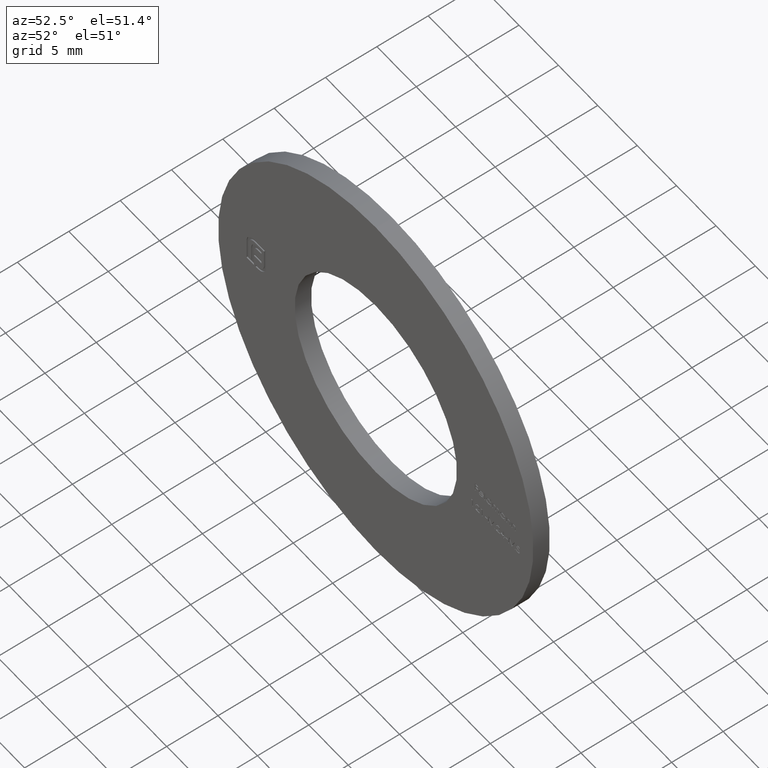
[diagram: clean part render]
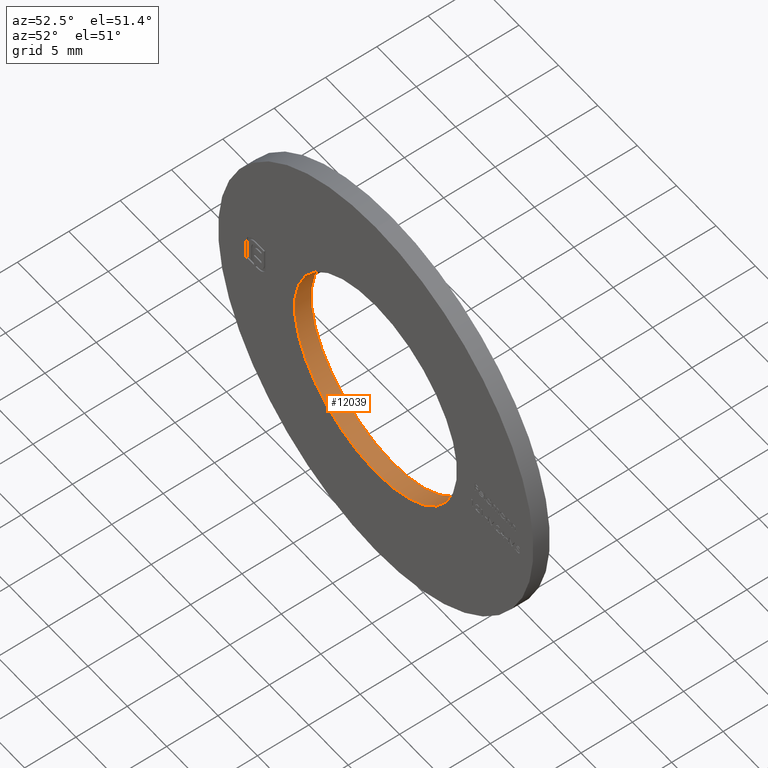
[diagram: same view with one face highlighted and labeled with its STEP entity id]
A machine part, auxiliary view. The second image highlights one B-rep face of the part: STEP entity #12039.
In plain terms, the highlighted cylindrical surface (bore or boss wall) has radius 10.3 mm, axis along (-0, -1, -0).
Its self-contained STEP definition (entity closure, byte-faithful):
#133 = FACE_OUTER_BOUND ( 'NONE', #4636, .T. ) ;
#1039 = DIRECTION ( 'NONE',  ( -0.000000000000000000, -1.000000000000000000, -0.000000000000000000 ) ) ;
#1114 = CIRCLE ( 'NONE', #8252, 10.30000000000000249 ) ;
#1130 = CARTESIAN_POINT ( 'NONE',  ( 0.000000000000000000, 0.8000000000000000444, 0.000000000000000000 ) ) ;
#1189 = FACE_OUTER_BOUND ( 'NONE', #3855, .T. ) ;
#1324 = CARTESIAN_POINT ( 'NONE',  ( 0.000000000000000000, -0.8000000000000000444, 0.000000000000000000 ) ) ;
#2435 = CIRCLE ( 'NONE', #10692, 10.30000000000000249 ) ;
#3645 = AXIS2_PLACEMENT_3D ( 'NONE', #1130, #1039, #5049 ) ;
#3855 = EDGE_LOOP ( 'NONE', ( #3971 ) ) ;
#3971 = ORIENTED_EDGE ( 'NONE', *, *, #8607, .T. ) ;
#4497 = EDGE_CURVE ( 'NONE', #7376, #7376, #1114, .T. ) ;
#4636 = EDGE_LOOP ( 'NONE', ( #10847 ) ) ;
#5049 = DIRECTION ( 'NONE',  ( 0.000000000000000000, 0.000000000000000000, -1.000000000000000000 ) ) ;
#5276 = DIRECTION ( 'NONE',  ( 0.000000000000000000, 1.000000000000000000, 0.000000000000000000 ) ) ;
#5277 = CARTESIAN_POINT ( 'NONE',  ( 0.000000000000000000, 0.8000000000000000444, 10.30000000000000249 ) ) ;
#5550 = VERTEX_POINT ( 'NONE', #5277 ) ;
#6152 = DIRECTION ( 'NONE',  ( 0.000000000000000000, 1.000000000000000000, 0.000000000000000000 ) ) ;
#6325 = CYLINDRICAL_SURFACE ( 'NONE', #3645, 10.30000000000000249 ) ;
#7376 = VERTEX_POINT ( 'NONE', #8045 ) ;
#8045 = CARTESIAN_POINT ( 'NONE',  ( 0.000000000000000000, -0.8000000000000000444, 10.30000000000000249 ) ) ;
#8109 = DIRECTION ( 'NONE',  ( 0.000000000000000000, 0.000000000000000000, 1.000000000000000000 ) ) ;
#8252 = AXIS2_PLACEMENT_3D ( 'NONE', #1324, #5276, #10032 ) ;
#8607 = EDGE_CURVE ( 'NONE', #5550, #5550, #2435, .T. ) ;
#10032 = DIRECTION ( 'NONE',  ( 0.000000000000000000, 0.000000000000000000, 1.000000000000000000 ) ) ;
#10692 = AXIS2_PLACEMENT_3D ( 'NONE', #11935, #6152, #8109 ) ;
#10847 = ORIENTED_EDGE ( 'NONE', *, *, #4497, .F. ) ;
#11935 = CARTESIAN_POINT ( 'NONE',  ( 0.000000000000000000, 0.8000000000000000444, 0.000000000000000000 ) ) ;
#12039 = ADVANCED_FACE ( 'NONE', ( #1189, #133 ), #6325, .F. ) ;